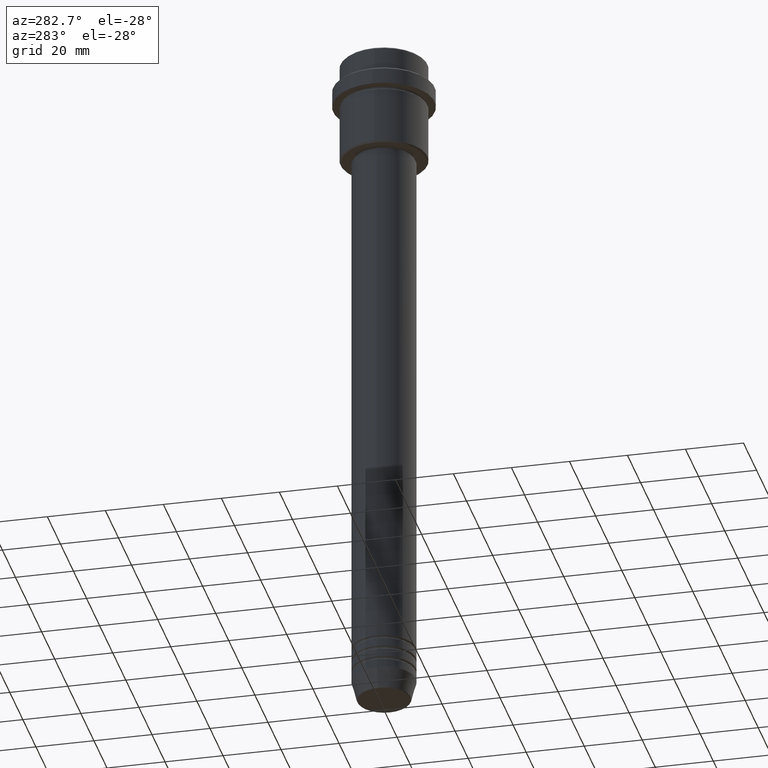
[diagram: clean part render]
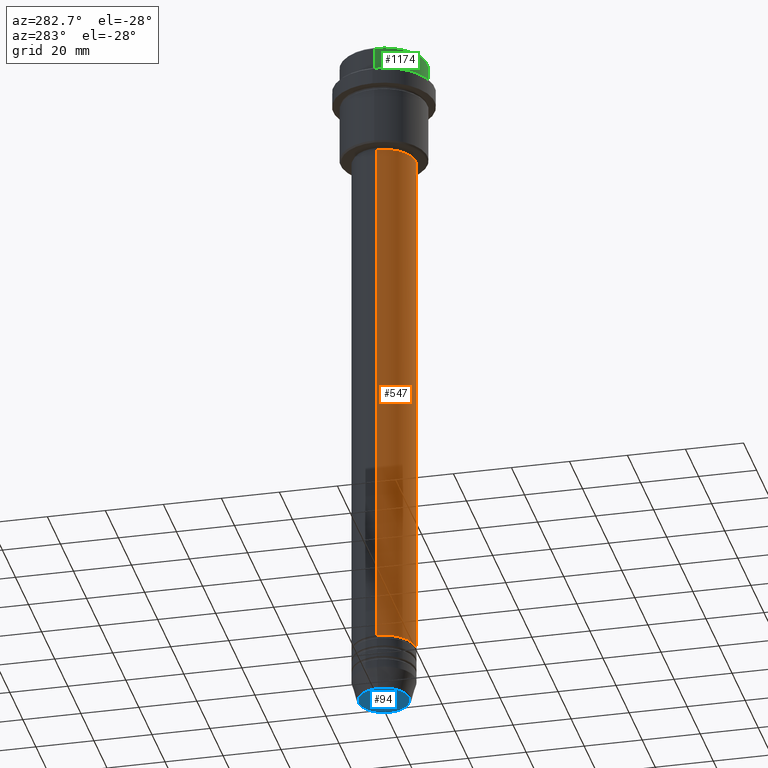
[diagram: same view with three faces highlighted in distinct colors, each labeled with its STEP entity id]
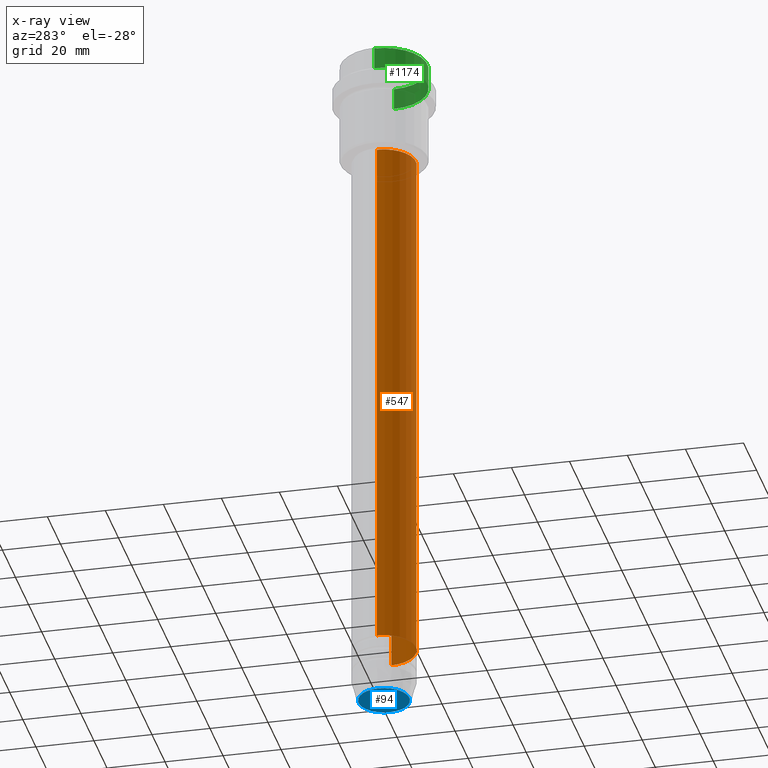
[diagram: x-ray of the same camera — body ghosted, the three highlighted faces saturated]
A machine part, auxiliary view with three faces highlighted in distinct colors.
The next image is the same camera in x-ray (body ghosted, the three faces saturated) — at least one of them is partly hidden behind the body in this view.
Their STEP definitions:

[orange] entity #547 — the highlighted cylindrical surface (edge-blend (fillet) strip) has radius 11 mm, axis along (-0, -0, 1).
#57 = DIRECTION ( 'NONE',  ( 1.000000000000000000, 0.000000000000000000, 0.000000000000000000 ) ) ;
#135 = VERTEX_POINT ( 'NONE', #363 ) ;
#138 = CARTESIAN_POINT ( 'NONE',  ( 10.99999999999999822, 0.000000000000000000, -37.00000000000000711 ) ) ;
#144 = ORIENTED_EDGE ( 'NONE', *, *, #286, .F. ) ;
#154 = VERTEX_POINT ( 'NONE', #138 ) ;
#157 = CARTESIAN_POINT ( 'NONE',  ( 0.000000000000000000, 0.000000000000000000, 0.000000000000000000 ) ) ;
#179 = ORIENTED_EDGE ( 'NONE', *, *, #580, .F. ) ;
#199 = CARTESIAN_POINT ( 'NONE',  ( -11.00000000000000000, 1.347111479062088405E-15, 0.000000000000000000 ) ) ;
#273 = DIRECTION ( 'NONE',  ( -0.000000000000000000, -0.000000000000000000, 1.000000000000000000 ) ) ;
#286 = EDGE_CURVE ( 'NONE', #598, #654, #745, .T. ) ;
#363 = CARTESIAN_POINT ( 'NONE',  ( 11.00000000000000000, 0.000000000000000000, -221.9999999999998579 ) ) ;
#367 = CYLINDRICAL_SURFACE ( 'NONE', #508, 11.00000000000000000 ) ;
#411 = CARTESIAN_POINT ( 'NONE',  ( -11.00000000000000000, 1.347111479062088405E-15, -221.9999999999998579 ) ) ;
#481 = DIRECTION ( 'NONE',  ( -0.000000000000000000, -0.000000000000000000, 1.000000000000000000 ) ) ;
#508 = AXIS2_PLACEMENT_3D ( 'NONE', #157, #481, #808 ) ;
#518 = CARTESIAN_POINT ( 'NONE',  ( -10.99999999999999822, 1.347111479062088207E-15, -37.00000000000000711 ) ) ;
#534 = VECTOR ( 'NONE', #556, 1000.000000000000000 ) ;
#547 = ADVANCED_FACE ( 'NONE', ( #923 ), #367, .T. ) ;
#556 = DIRECTION ( 'NONE',  ( -0.000000000000000000, -0.000000000000000000, 1.000000000000000000 ) ) ;
#580 = EDGE_CURVE ( 'NONE', #654, #154, #585, .T. ) ;
#585 = CIRCLE ( 'NONE', #647, 10.99999999999999822 ) ;
#587 = ORIENTED_EDGE ( 'NONE', *, *, #1199, .T. ) ;
#598 = VERTEX_POINT ( 'NONE', #411 ) ;
#638 = DIRECTION ( 'NONE',  ( -0.000000000000000000, -0.000000000000000000, 1.000000000000000000 ) ) ;
#647 = AXIS2_PLACEMENT_3D ( 'NONE', #904, #273, #707 ) ;
#654 = VERTEX_POINT ( 'NONE', #518 ) ;
#671 = EDGE_LOOP ( 'NONE', ( #144, #1321, #587, #179 ) ) ;
#707 = DIRECTION ( 'NONE',  ( 1.000000000000000000, 0.000000000000000000, 0.000000000000000000 ) ) ;
#712 = DIRECTION ( 'NONE',  ( -0.000000000000000000, -0.000000000000000000, 1.000000000000000000 ) ) ;
#745 = LINE ( 'NONE', #199, #879 ) ;
#770 = AXIS2_PLACEMENT_3D ( 'NONE', #830, #712, #57 ) ;
#776 = CARTESIAN_POINT ( 'NONE',  ( 11.00000000000000000, 0.000000000000000000, 0.000000000000000000 ) ) ;
#808 = DIRECTION ( 'NONE',  ( 1.000000000000000000, 0.000000000000000000, 0.000000000000000000 ) ) ;
#830 = CARTESIAN_POINT ( 'NONE',  ( 0.000000000000000000, 0.000000000000000000, -221.9999999999998579 ) ) ;
#879 = VECTOR ( 'NONE', #638, 1000.000000000000000 ) ;
#904 = CARTESIAN_POINT ( 'NONE',  ( 0.000000000000000000, 0.000000000000000000, -37.00000000000000711 ) ) ;
#923 = FACE_OUTER_BOUND ( 'NONE', #671, .T. ) ;
#1053 = EDGE_CURVE ( 'NONE', #598, #135, #1365, .T. ) ;
#1199 = EDGE_CURVE ( 'NONE', #135, #154, #1302, .T. ) ;
#1302 = LINE ( 'NONE', #776, #534 ) ;
#1321 = ORIENTED_EDGE ( 'NONE', *, *, #1053, .T. ) ;
#1365 = CIRCLE ( 'NONE', #770, 11.00000000000000000 ) ;

[blue] entity #94 — the highlighted planar face has unit normal (0, -0, 1).
#61 = DIRECTION ( 'NONE',  ( 0.000000000000000000, -0.000000000000000000, 1.000000000000000000 ) ) ;
#68 = DIRECTION ( 'NONE',  ( 0.000000000000000000, 0.000000000000000000, -1.000000000000000000 ) ) ;
#94 = ADVANCED_FACE ( 'NONE', ( #683 ), #130, .F. ) ;
#113 = CARTESIAN_POINT ( 'NONE',  ( 0.000000000000000000, 0.000000000000000000, -241.0000000000000000 ) ) ;
#123 = CIRCLE ( 'NONE', #1004, 8.740692158992656502 ) ;
#130 = PLANE ( 'NONE',  #715 ) ;
#204 = CARTESIAN_POINT ( 'NONE',  ( 0.000000000000000000, 0.000000000000000000, -241.0000000000000000 ) ) ;
#290 = VERTEX_POINT ( 'NONE', #872 ) ;
#315 = DIRECTION ( 'NONE',  ( 0.000000000000000000, 0.000000000000000000, -1.000000000000000000 ) ) ;
#395 = CIRCLE ( 'NONE', #1336, 8.740692158992656502 ) ;
#626 = CARTESIAN_POINT ( 'NONE',  ( -8.740692158992656502, 1.099999016768739653E-15, -241.0000000000000000 ) ) ;
#683 = FACE_OUTER_BOUND ( 'NONE', #1202, .T. ) ;
#715 = AXIS2_PLACEMENT_3D ( 'NONE', #113, #61, #1013 ) ;
#746 = EDGE_CURVE ( 'NONE', #1146, #290, #395, .T. ) ;
#786 = DIRECTION ( 'NONE',  ( 1.000000000000000000, 0.000000000000000000, 0.000000000000000000 ) ) ;
#839 = DIRECTION ( 'NONE',  ( 1.000000000000000000, 0.000000000000000000, 0.000000000000000000 ) ) ;
#872 = CARTESIAN_POINT ( 'NONE',  ( 8.740692158992656502, 0.000000000000000000, -241.0000000000000000 ) ) ;
#1004 = AXIS2_PLACEMENT_3D ( 'NONE', #1049, #68, #839 ) ;
#1013 = DIRECTION ( 'NONE',  ( 1.000000000000000000, 0.000000000000000000, 0.000000000000000000 ) ) ;
#1049 = CARTESIAN_POINT ( 'NONE',  ( 0.000000000000000000, 0.000000000000000000, -241.0000000000000000 ) ) ;
#1101 = EDGE_CURVE ( 'NONE', #290, #1146, #123, .T. ) ;
#1137 = ORIENTED_EDGE ( 'NONE', *, *, #1101, .T. ) ;
#1146 = VERTEX_POINT ( 'NONE', #626 ) ;
#1202 = EDGE_LOOP ( 'NONE', ( #1137, #1414 ) ) ;
#1336 = AXIS2_PLACEMENT_3D ( 'NONE', #204, #315, #786 ) ;
#1414 = ORIENTED_EDGE ( 'NONE', *, *, #746, .T. ) ;

[green] entity #1174 — the highlighted cylindrical surface (partial cylindrical patch) has radius 15 mm, axis along (-0, -0, 1).
#41 = AXIS2_PLACEMENT_3D ( 'NONE', #436, #1290, #850 ) ;
#42 = CIRCLE ( 'NONE', #744, 15.00000000000000000 ) ;
#50 = VERTEX_POINT ( 'NONE', #448 ) ;
#85 = LINE ( 'NONE', #283, #740 ) ;
#93 = CARTESIAN_POINT ( 'NONE',  ( 0.000000000000000000, 0.000000000000000000, -7.999999999999998224 ) ) ;
#146 = DIRECTION ( 'NONE',  ( 1.000000000000000000, 0.000000000000000000, 0.000000000000000000 ) ) ;
#180 = DIRECTION ( 'NONE',  ( -0.000000000000000000, -0.000000000000000000, 1.000000000000000000 ) ) ;
#182 = EDGE_CURVE ( 'NONE', #929, #1328, #621, .T. ) ;
#240 = CARTESIAN_POINT ( 'NONE',  ( 15.00000000000000000, 0.000000000000000000, -7.999999999999998224 ) ) ;
#283 = CARTESIAN_POINT ( 'NONE',  ( -15.00000000000000000, 1.836970198721029589E-15, 0.000000000000000000 ) ) ;
#390 = CARTESIAN_POINT ( 'NONE',  ( 15.00000000000000000, 0.000000000000000000, 0.000000000000000000 ) ) ;
#402 = EDGE_LOOP ( 'NONE', ( #423, #615, #1226, #1337 ) ) ;
#423 = ORIENTED_EDGE ( 'NONE', *, *, #1068, .F. ) ;
#436 = CARTESIAN_POINT ( 'NONE',  ( 0.000000000000000000, 0.000000000000000000, 0.000000000000000000 ) ) ;
#448 = CARTESIAN_POINT ( 'NONE',  ( -15.00000000000000000, 1.836970198721029589E-15, -0.5000000000000662803 ) ) ;
#615 = ORIENTED_EDGE ( 'NONE', *, *, #182, .T. ) ;
#621 = CIRCLE ( 'NONE', #814, 15.00000000000000000 ) ;
#627 = EDGE_CURVE ( 'NONE', #1328, #880, #940, .T. ) ;
#669 = CARTESIAN_POINT ( 'NONE',  ( 0.000000000000000000, 0.000000000000000000, -0.5000000000000662803 ) ) ;
#681 = CARTESIAN_POINT ( 'NONE',  ( -15.00000000000000000, 1.836970198721029589E-15, -7.999999999999998224 ) ) ;
#740 = VECTOR ( 'NONE', #180, 1000.000000000000000 ) ;
#744 = AXIS2_PLACEMENT_3D ( 'NONE', #669, #1233, #146 ) ;
#814 = AXIS2_PLACEMENT_3D ( 'NONE', #93, #1408, #1387 ) ;
#847 = DIRECTION ( 'NONE',  ( -0.000000000000000000, -0.000000000000000000, 1.000000000000000000 ) ) ;
#850 = DIRECTION ( 'NONE',  ( 1.000000000000000000, 0.000000000000000000, 0.000000000000000000 ) ) ;
#862 = FACE_OUTER_BOUND ( 'NONE', #402, .T. ) ;
#880 = VERTEX_POINT ( 'NONE', #922 ) ;
#922 = CARTESIAN_POINT ( 'NONE',  ( 15.00000000000000000, 0.000000000000000000, -0.5000000000000662803 ) ) ;
#929 = VERTEX_POINT ( 'NONE', #681 ) ;
#940 = LINE ( 'NONE', #390, #1409 ) ;
#1068 = EDGE_CURVE ( 'NONE', #929, #50, #85, .T. ) ;
#1174 = ADVANCED_FACE ( 'NONE', ( #862 ), #1209, .T. ) ;
#1209 = CYLINDRICAL_SURFACE ( 'NONE', #41, 15.00000000000000000 ) ;
#1226 = ORIENTED_EDGE ( 'NONE', *, *, #627, .T. ) ;
#1233 = DIRECTION ( 'NONE',  ( 0.000000000000000000, 0.000000000000000000, -1.000000000000000000 ) ) ;
#1290 = DIRECTION ( 'NONE',  ( -0.000000000000000000, -0.000000000000000000, 1.000000000000000000 ) ) ;
#1328 = VERTEX_POINT ( 'NONE', #240 ) ;
#1337 = ORIENTED_EDGE ( 'NONE', *, *, #1367, .T. ) ;
#1367 = EDGE_CURVE ( 'NONE', #880, #50, #42, .T. ) ;
#1387 = DIRECTION ( 'NONE',  ( 1.000000000000000000, 0.000000000000000000, 0.000000000000000000 ) ) ;
#1408 = DIRECTION ( 'NONE',  ( -0.000000000000000000, -0.000000000000000000, 1.000000000000000000 ) ) ;
#1409 = VECTOR ( 'NONE', #847, 1000.000000000000000 ) ;